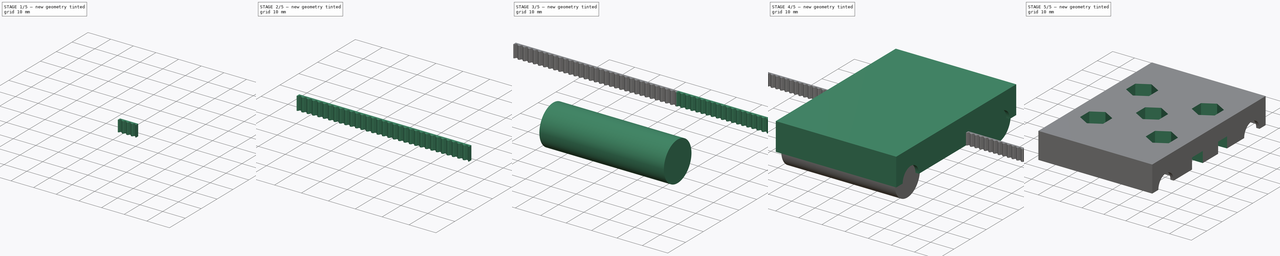
[diagram: build sequence overview — one tinted view per stage of 5, left to right]
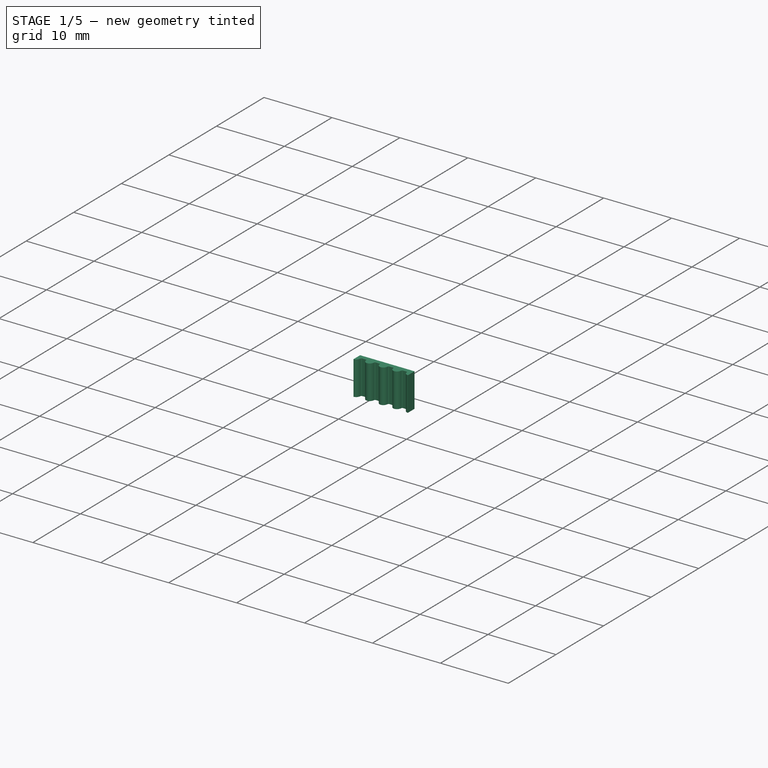
[diagram: stage 1 of 5 — iso view after this stage's code; geometry added in this stage tinted green]
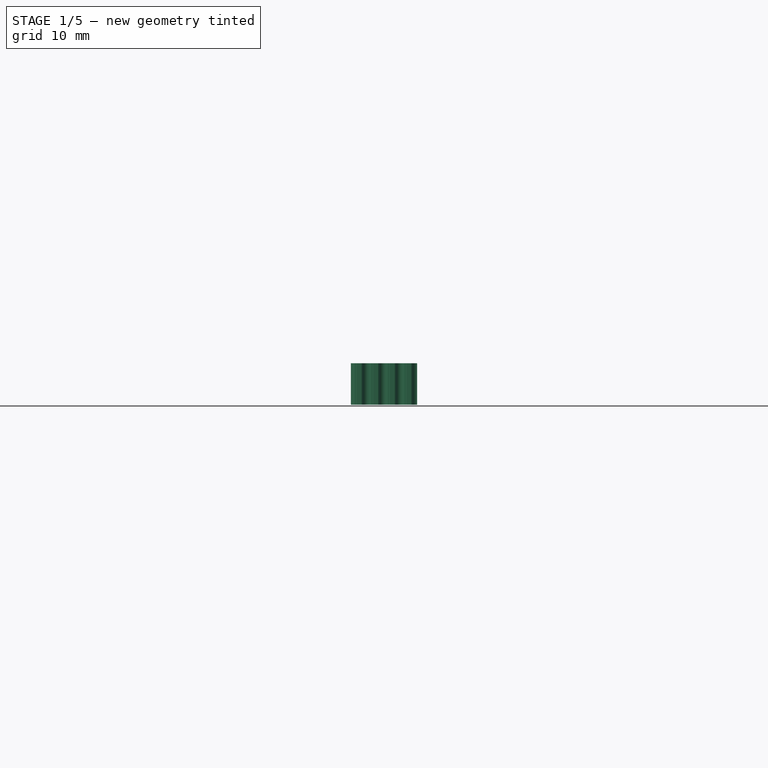
[diagram: stage 1 of 5 — front view after this stage's code; geometry added in this stage tinted green]
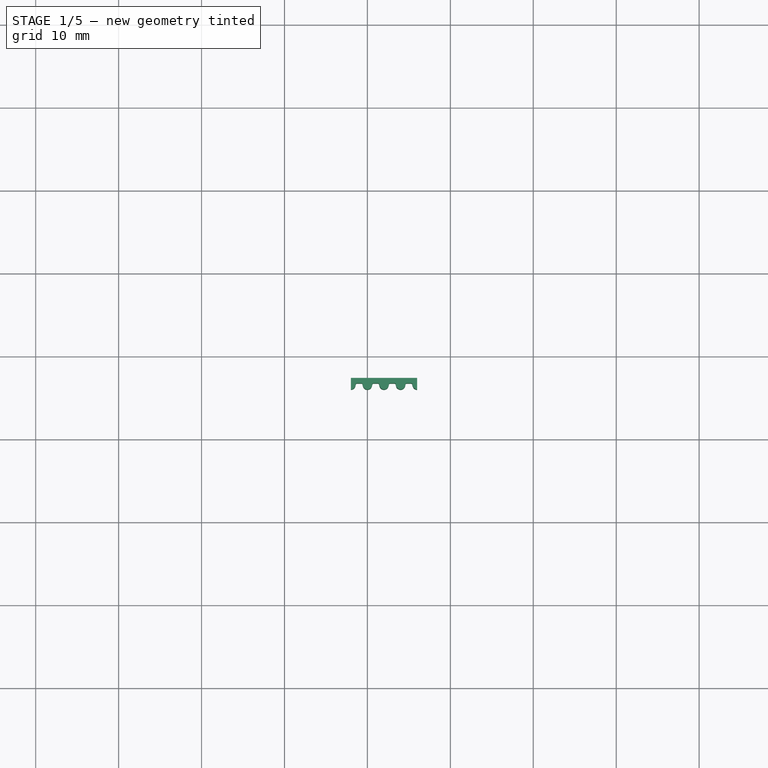
[diagram: stage 1 of 5 — top view after this stage's code; geometry added in this stage tinted green]
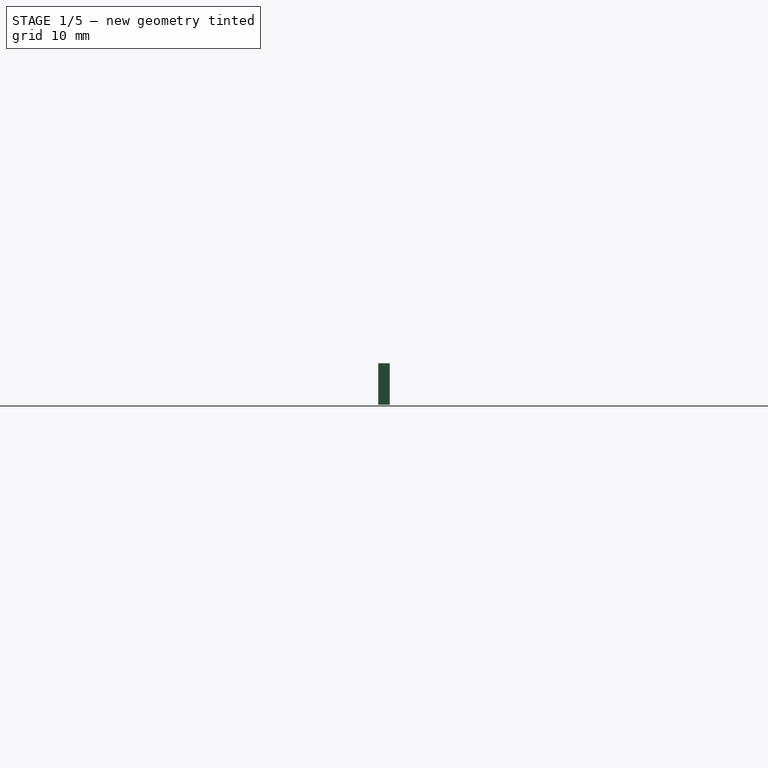
[diagram: stage 1 of 5 — right view after this stage's code; geometry added in this stage tinted green]
FCSTD DOCUMENT  (FreeCAD 0.18R16131 (Git))
Label: carriage_8mm_rods
License: All rights reserved
LicenseURL: http://en.wikipedia.org/wiki/All_rights_reserved
objects: Part::MultiFuse×9, Sketcher::SketchObject×6, Part::FeaturePython×5, Part::Mirroring×4, PartDesign::Pocket×4, Part::Cut×3, PartDesign::Pad×2, Part::Cylinder×2, Spreadsheet::Sheet×1
note: 41 computed .brp shape members not serialized (recipe doc carries the construction recipe); baked Part::Feature solids carry a one-line shape summary decoded from their .brp

FEATURE [Sketcher::SketchObject] Sketch003  label="BeltHolderSketch"
  MapMode = 5
  sketch-geometry (24):
    g0: LineSegment [constr] StartX=0 StartY=6 StartZ=0 EndX=2 EndY=6 EndZ=0
    g1: LineSegment [constr] StartX=2 StartY=6 StartZ=0 EndX=2 EndY=6.75 EndZ=0
    g2: LineSegment [constr] StartX=2 StartY=6.75 StartZ=0 EndX=0 EndY=6.75 EndZ=0
    g3: LineSegment [constr] StartX=0 StartY=6.75 StartZ=0 EndX=0 EndY=6 EndZ=0
    g4: LineSegment [constr] StartX=2 StartY=6.75 StartZ=0 EndX=2.4 EndY=6.75 EndZ=0
    g5: LineSegment [constr] StartX=0 StartY=6.75 StartZ=0 EndX=-0.4 EndY=6.75 EndZ=0
    g6: GeomPoint [constr] X=0 Y=6 Z=0
    g7: ArcOfCircle CenterX=0 CenterY=6.56117 CenterZ=0 NormalX=0 NormalY=0 NormalZ=1 AngleXU=0 Radius=0.561168 StartAngle=4.71239 EndAngle=5.67385
    g8: ArcOfCircle CenterX=-0.4 CenterY=6.75 CenterZ=0 NormalX=0 NormalY=0 NormalZ=1 AngleXU=0 Radius=1 StartAngle=5.748 EndAngle=6.13262
    g9: ArcOfCircle CenterX=0.738686 CenterY=6.6 CenterZ=0 NormalX=0 NormalY=0 NormalZ=1 AngleXU=0 Radius=0.15 StartAngle=1.5708 EndAngle=3.14159
    g10: ArcOfCircle CenterX=2 CenterY=6.56117 CenterZ=0 NormalX=0 NormalY=0 NormalZ=1 AngleXU=0 Radius=0.561168 StartAngle=3.75093 EndAngle=4.71239
    g11: LineSegment [constr] StartX=0.460174 StartY=6.24 StartZ=0 EndX=1.53983 EndY=6.24 EndZ=0
    g12: ArcOfCircle CenterX=2.4 CenterY=6.75 CenterZ=0 NormalX=0 NormalY=0 NormalZ=1 AngleXU=0 Radius=1 StartAngle=3.29216 EndAngle=3.67678
    g13: LineSegment [constr] StartX=0.460174 StartY=6.24 StartZ=0 EndX=0 EndY=6.24 EndZ=0
    g14: LineSegment [constr] StartX=1.53983 StartY=6.24 StartZ=0 EndX=2 EndY=6.24 EndZ=0
    g15: LineSegment [constr] StartX=0.588686 StartY=6.6 StartZ=0 EndX=1.41131 EndY=6.6 EndZ=0
    g16: GeomPoint [constr] X=1.26131 Y=6.6 Z=0
    g17: ArcOfCircle CenterX=1.26131 CenterY=6.6 CenterZ=0 NormalX=0 NormalY=0 NormalZ=1 AngleXU=0 Radius=0.15 StartAngle=0 EndAngle=1.57082
    g18: LineSegment StartX=0.738686 StartY=6.75 StartZ=0 EndX=1.26131 EndY=6.75 EndZ=0
    g19: LineSegment [constr] StartX=0.738686 StartY=6.6 StartZ=0 EndX=0.738686 EndY=6.75 EndZ=0
    g20: GeomPoint [constr] X=0 Y=6 Z=0
    g21: LineSegment StartX=0 StartY=6 StartZ=0 EndX=0 EndY=7.38 EndZ=0
    g22: LineSegment StartX=2 StartY=6 StartZ=0 EndX=2 EndY=7.38 EndZ=0
    g23: LineSegment StartX=0 StartY=7.38 StartZ=0 EndX=2 EndY=7.38 EndZ=0
  constraints (65):
    c: Coincident(g3,g0)
    c: Horizontal(g11)
    c: Coincident(g11,g7)
    c: Coincident(g11,g10)
    c: DistanceX(g2,g1) = 2
    c: Equal(g7,g10)
    c: Radius(g8) = 1
    c: Equal(g12,g8)
    c: Coincident(g8,g9)
    c: Coincident(g7,g8)
    c: Vertical(g3)
    c: Horizontal(g0)
    c: Horizontal(g2)
    c: Vertical(g1)
    c: Horizontal(g4)
    c: Horizontal(g5)
    c: PointOnObject(g9,g2)
    c: Radius(g9) = 0.15
    c: Coincident(g4,g12)
    c: DistanceX(g1,g4) = 0.4
    c: Coincident(g0,g1)
    c: Coincident(g0,g10)
    c: Coincident(g10,g12)
    c: Coincident(g5,g8)
    c: Coincident(g2,g3)
    c: Coincident(g2,g5)
    c: Coincident(g1,g2)
    c: Coincident(g1,g4)
    c: DistanceY(g1,g1) = 0.75
    c: Coincident(g0,g6)
    c: Coincident(g0,g7)
    c: Coincident(g13,g7)
    c: Horizontal(g13)
    c: PointOnObject(g13,g3)
    c: Coincident(g14,g10)
    c: Horizontal(g14)
    c: PointOnObject(g14,g1)
    c: Equal(g13,g14)
    c: Coincident(g15,g8)
    c: Coincident(g15,g12)
    c: Horizontal(g15)
    c: PointOnObject(g7,g3)
    c: DistanceY(g12,g1) = 0.15
    c: PointOnObject(g16,g15)
    c: DistanceX(g16,g12) = 0.15
    c: Coincident(g17,g16)
    c: Coincident(g18,g9)
    c: Vertical(g19)
    c: Coincident(g19,g9)
    c: Coincident(g19,g9)
    c: PointOnObject(g17,g2)
    c: Coincident(g18,g17)
    c: DistanceY(g0,g14) = 0.24
    c: Coincident(g17,g12)
    c: PointOnObject(g20,g-2)
    c: DistanceY(g-1,g20) = 6
    c: Coincident(g20,g0)
    c: Coincident(g21,g0)
    c: Vertical(g21)
    c: Coincident(g22,g0)
    c: Vertical(g22)
    c: Equal(g21,g22)
    c: DistanceY(g0,g21) = 1.38
    c: Coincident(g23,g21)
    c: Coincident(g23,g22)
FEATURE [PartDesign::Pad] Pad001  label="BeltHolderPad"
  Length = 5
  Length2 = 100
  Profile = -> Sketch003
  Type = 0
FEATURE [Part::FeaturePython] Clone  label="Clone of BeltHolderPad"  # Draft clone (typed FeaturePython)
  Objects = -> [Pad001]
  Placement = pos=(2,0,0) rot=(0,0,1;0rad)
  Scale = (1,1,1)
FEATURE [Part::MultiFuse] Fusion003  label="BeltHolderFusion1"
  Shapes = -> [Pad001,Clone]
FEATURE [Part::FeaturePython] Clone001  label="Clone of BeltHolderFusion1"  # Draft clone (typed FeaturePython)
  Objects = -> [Fusion003]
  Placement = pos=(4,0,0) rot=(0,0,1;0rad)
  Scale = (1,1,1)
FEATURE [Part::MultiFuse] Fusion004  label="BeltHolderFusion2"
  Shapes = -> [Fusion003,Clone001]
FEATURE [Part::FeaturePython] Clone002  label="Clone of BeltHolderFusion2"  # Draft clone (typed FeaturePython)
  Objects = -> [Fusion004]
  Placement = pos=(8,0,0) rot=(0,0,1;0rad)
  Scale = (1,1,1)
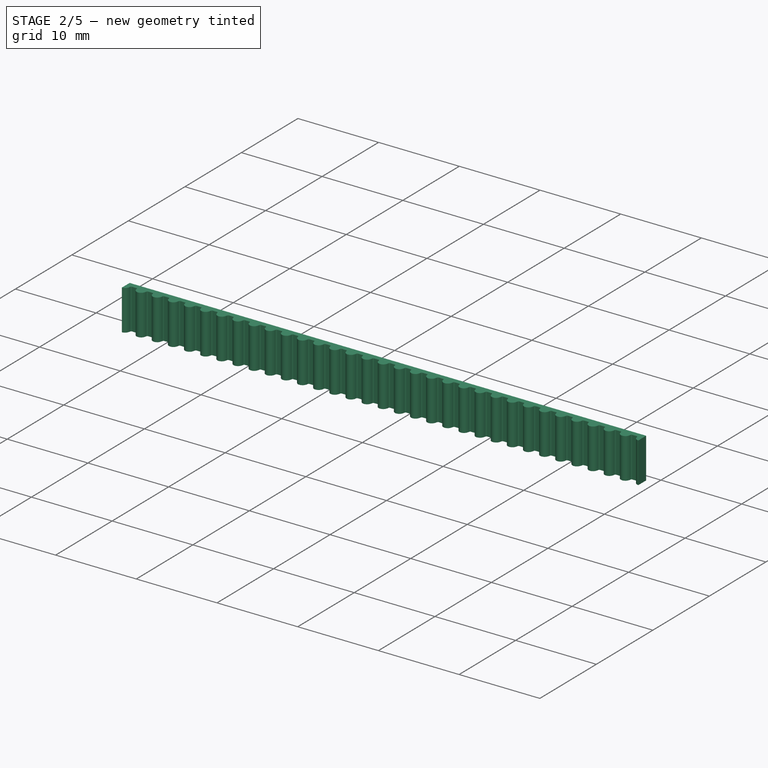
[diagram: stage 2 of 5 — iso view after this stage's code; geometry added in this stage tinted green]
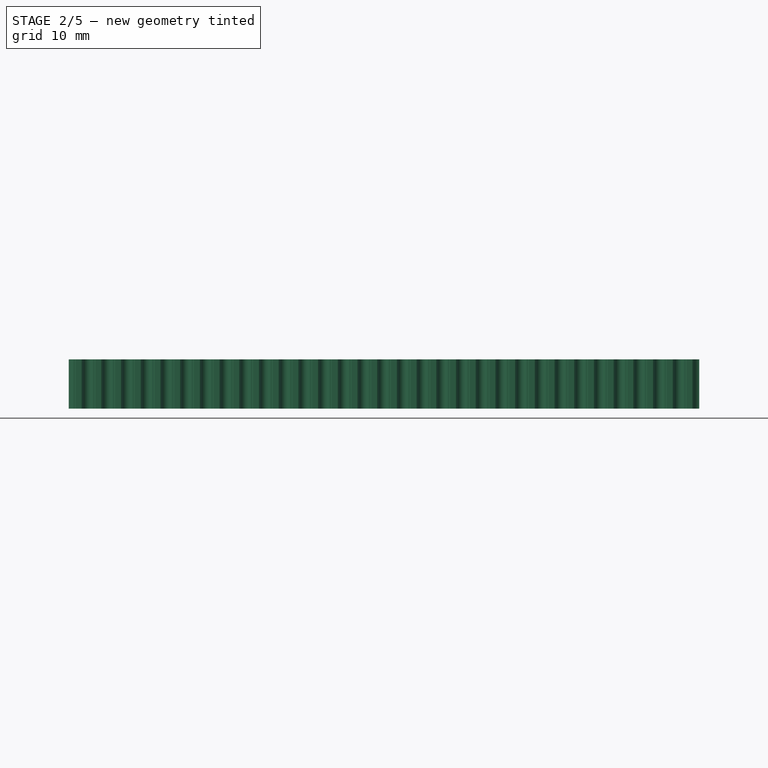
[diagram: stage 2 of 5 — front view after this stage's code; geometry added in this stage tinted green]
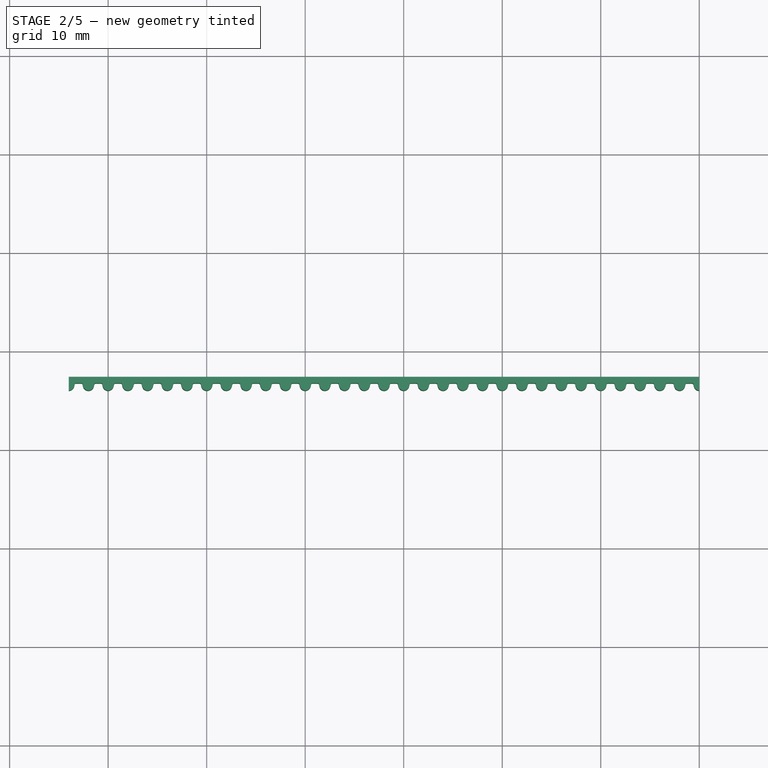
[diagram: stage 2 of 5 — top view after this stage's code; geometry added in this stage tinted green]
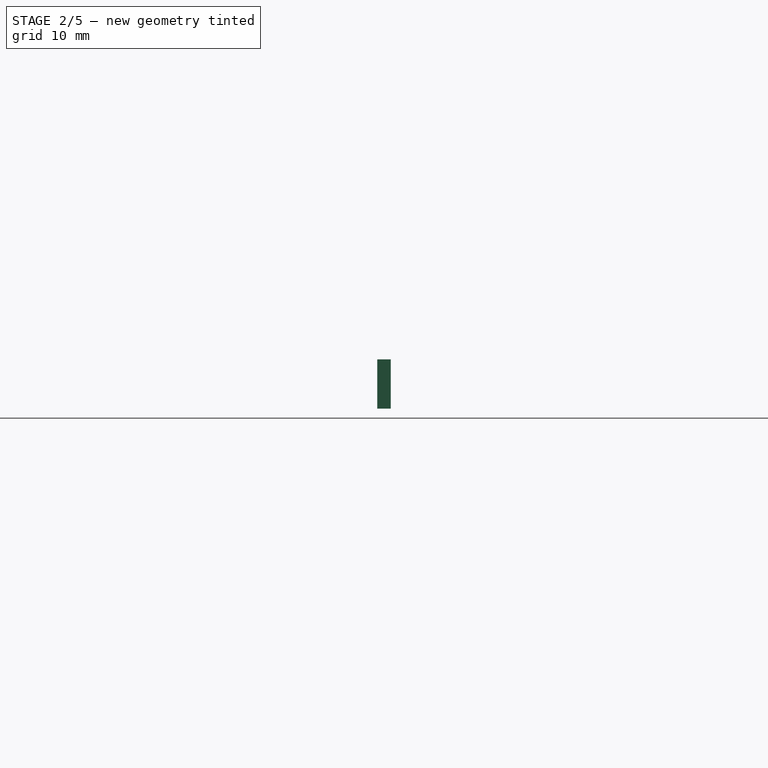
[diagram: stage 2 of 5 — right view after this stage's code; geometry added in this stage tinted green]
FEATURE [Part::MultiFuse] Fusion005  label="BeltHolderFusion3"
  Shapes = -> [Fusion004,Clone002]
FEATURE [Part::FeaturePython] Clone003  label="Clone of BeltHolderFusion3"  # Draft clone (typed FeaturePython)
  Objects = -> [Fusion005]
  Placement = pos=(16,0,0) rot=(0,0,1;0rad)
  Scale = (1,1,1)
FEATURE [Part::MultiFuse] Fusion006  label="BeltHolderFusion4"
  Shapes = -> [Fusion005,Clone003]
FEATURE [Part::FeaturePython] Clone004  label="Clone of BeltHolderFusion4"  # Draft clone (typed FeaturePython)
  Objects = -> [Fusion006]
  Placement = pos=(32,0,0) rot=(0,0,1;0rad)
  Scale = (1,1,1)
FEATURE [Part::MultiFuse] Fusion007  label="BeltHolderFusion5"
  Shapes = -> [Fusion006,Clone004]
FEATURE [Part::Mirroring] Part__Mirroring003  label="BeltHolderFusion5 (Mirror #4)"
  Base = (0,0,0)
  Normal = (1,0,0)
  Source = -> Fusion007
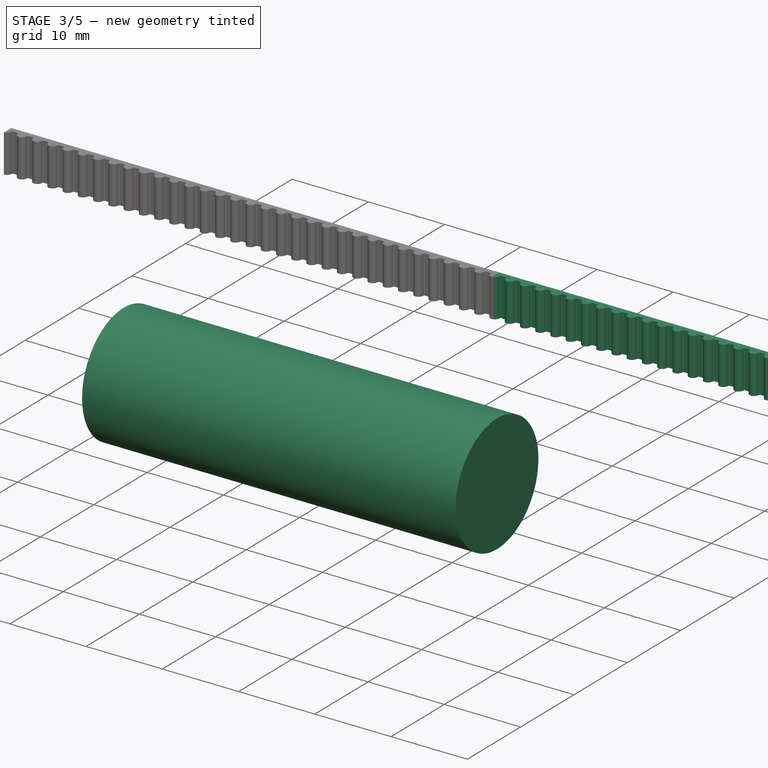
[diagram: stage 3 of 5 — iso view after this stage's code; geometry added in this stage tinted green]
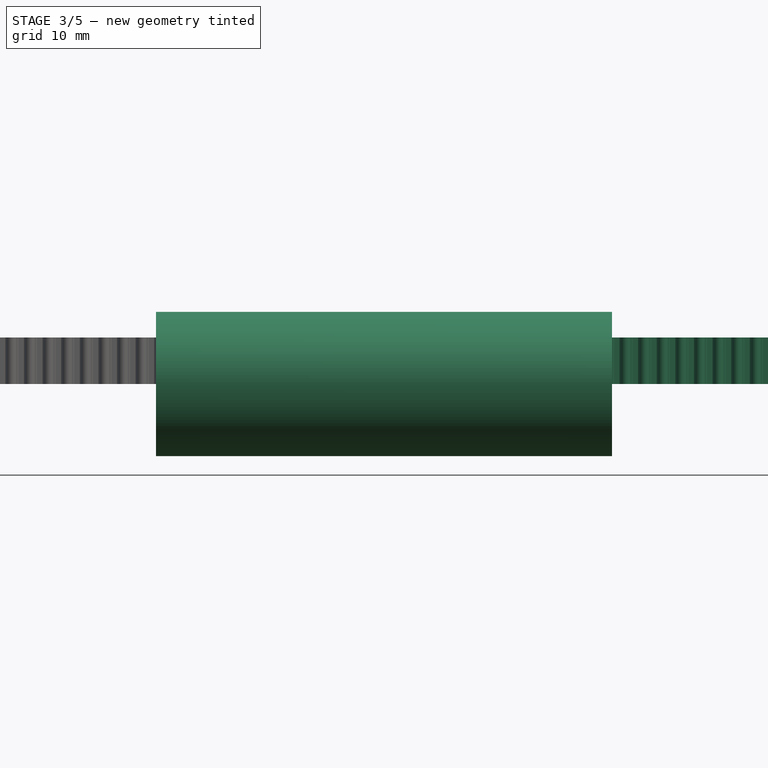
[diagram: stage 3 of 5 — front view after this stage's code; geometry added in this stage tinted green]
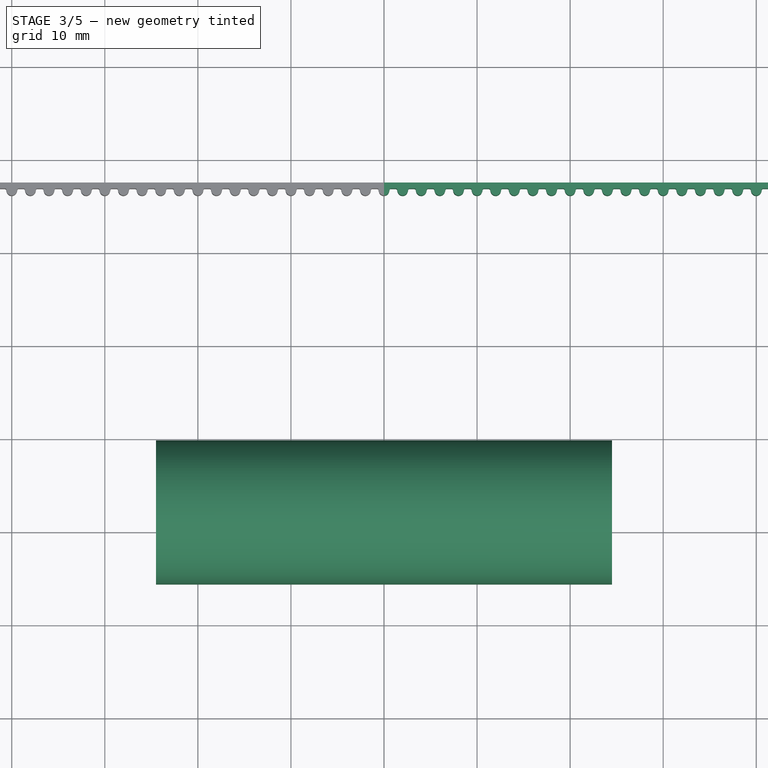
[diagram: stage 3 of 5 — top view after this stage's code; geometry added in this stage tinted green]
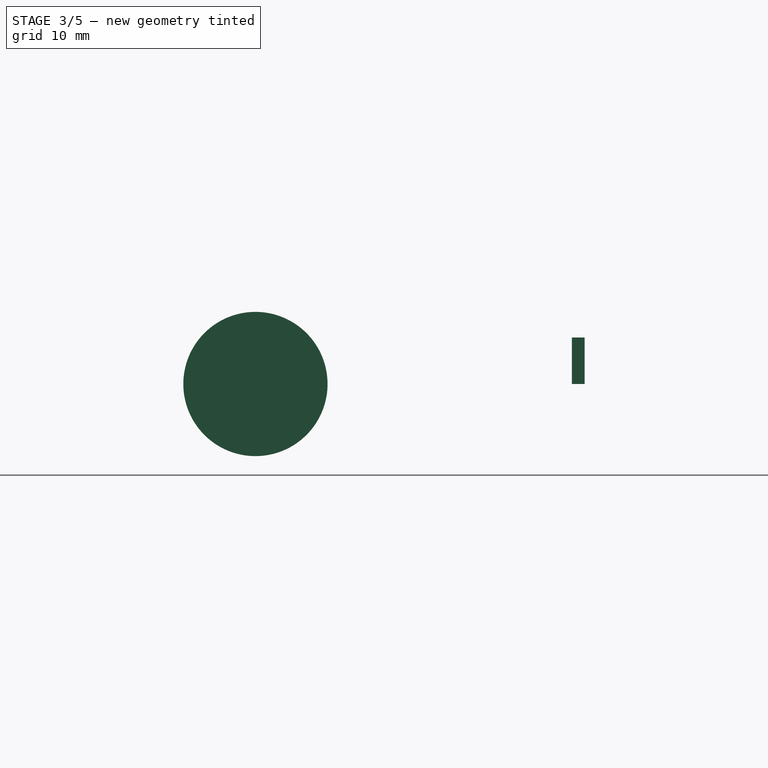
[diagram: stage 3 of 5 — right view after this stage's code; geometry added in this stage tinted green]
FEATURE [Part::Cylinder] Cylinder001  label="BearingCylinder"
  Angle = 360
  AttacherType = Attacher::AttachEngine3D
  Height = 24.5
  Placement = pos=(0,28,0) rot=(0,-1,0;1.5708rad)
  Radius = 7.75
FEATURE [Part::Mirroring] Part__Mirroring001  label="BearingCylinder (Mirror #2)"
  Base = (0,0,0)
  Normal = (1,0,0)
  Source = -> Cylinder001
FEATURE [Part::MultiFuse] Fusion001  label="BearingFusion1"
  Shapes = -> [Part__Mirroring001,Cylinder001]
FEATURE [Part::Mirroring] Part__Mirroring002  label="BearingFusion1 (Mirror #3)"
  Base = (0,0,0)
  Normal = (0,1,0)
  Source = -> Fusion001
FEATURE [Part::MultiFuse] Fusion008  label="BeltHolderFusions"
  Shapes = -> [Part__Mirroring003,Fusion007]
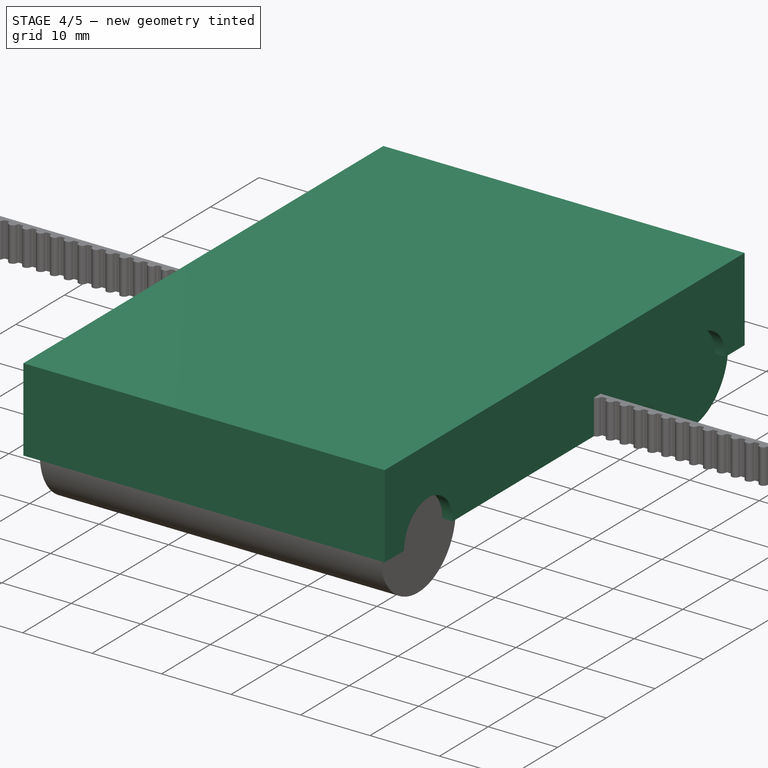
[diagram: stage 4 of 5 — iso view after this stage's code; geometry added in this stage tinted green]
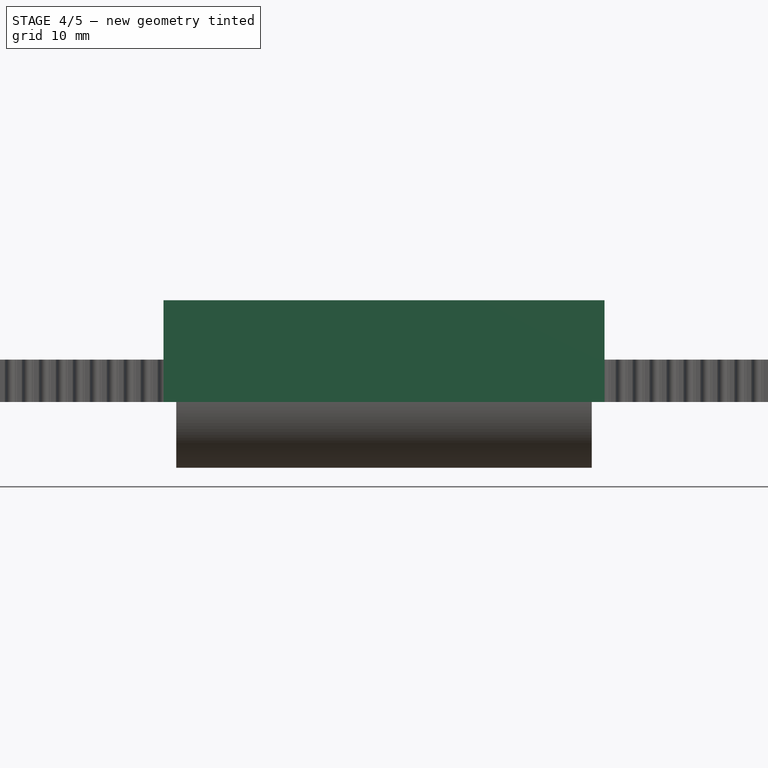
[diagram: stage 4 of 5 — front view after this stage's code; geometry added in this stage tinted green]
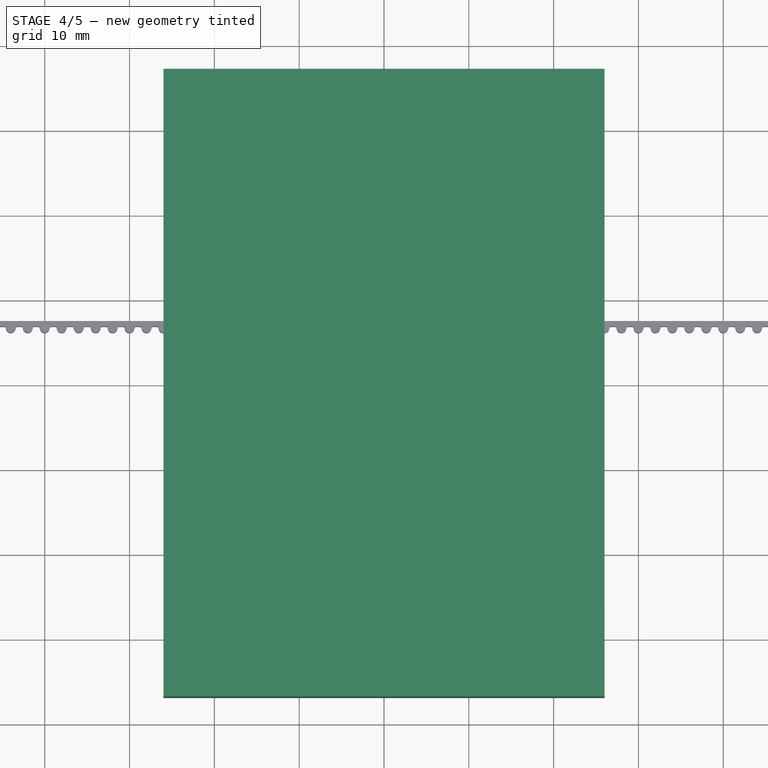
[diagram: stage 4 of 5 — top view after this stage's code; geometry added in this stage tinted green]
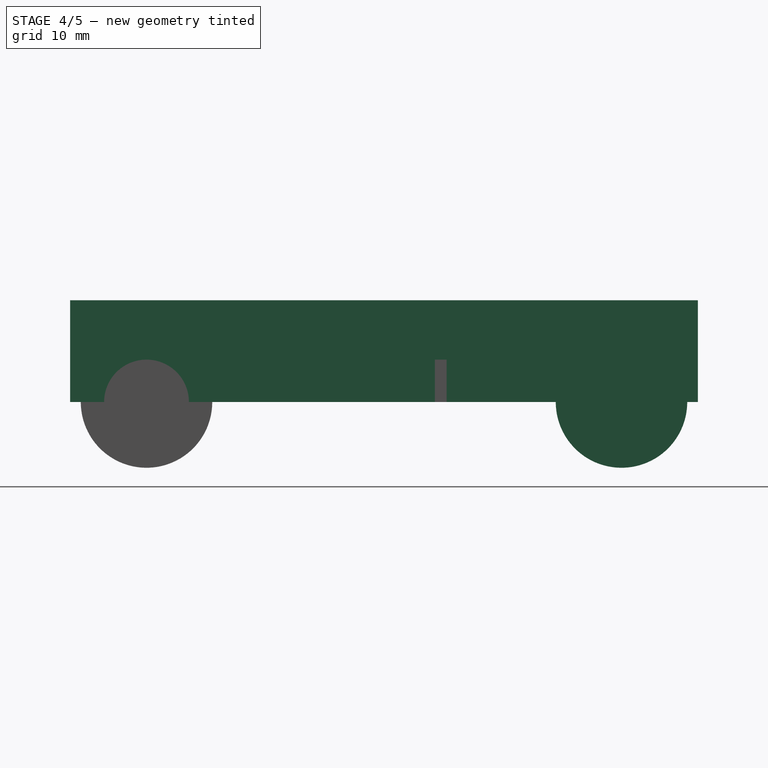
[diagram: stage 4 of 5 — right view after this stage's code; geometry added in this stage tinted green]
FEATURE [Sketcher::SketchObject] Sketch  label="CarriageBlockSketch"
  MapMode = 5
  sketch-geometry (6):
    g0: LineSegment StartX=-26 StartY=37 StartZ=0 EndX=26 EndY=37 EndZ=0
    g1: LineSegment StartX=26 StartY=37 StartZ=0 EndX=26 EndY=-37 EndZ=0
    g2: LineSegment StartX=26 StartY=-37 StartZ=0 EndX=-26 EndY=-37 EndZ=0
    g3: LineSegment StartX=-26 StartY=-37 StartZ=0 EndX=-26 EndY=37 EndZ=0
    g4: GeomPoint [constr] X=-26 Y=0 Z=0
    g5: GeomPoint [constr] X=0 Y=37 Z=0
  constraints (10):
    c: Coincident(g0,g1)
    c: Coincident(g1,g2)
    c: Coincident(g2,g3)
    c: Coincident(g3,g0)
    c: Horizontal(g0)
    c: Horizontal(g2)
    c: Vertical(g1)
    c: Vertical(g3)
    c: Symmetric(g0,g0,g5)
    c: Symmetric(g0,g2,g4)
FEATURE [PartDesign::Pad] Pad  label="CarriageBlockPad"
  Length = 12
  Length2 = 100
  Profile = -> Sketch
  Type = 0
FEATURE [Part::Cylinder] Cylinder  label="RodCylinder"
  Angle = 360
  AttacherType = Attacher::AttachEngine3D
  Height = 90
  Placement = pos=(45,28,0) rot=(0,-1,0;1.5708rad)
  Radius = 5
FEATURE [Part::Mirroring] Part__Mirroring  label="RodCylinder (Mirror #1)"
  Base = (0,0,0)
  Normal = (0,1,0)
  Source = -> Cylinder
FEATURE [Part::MultiFuse] Fusion  label="RodCylinderFusion"
  Shapes = -> [Part__Mirroring,Cylinder]
FEATURE [Part::Cut] Cut  label="RodCut"
  Base = -> Pad
  Tool = -> Fusion
FEATURE [Part::MultiFuse] Fusion002  label="BearingMirrorFusions"
  Shapes = -> [Part__Mirroring002,Fusion001]
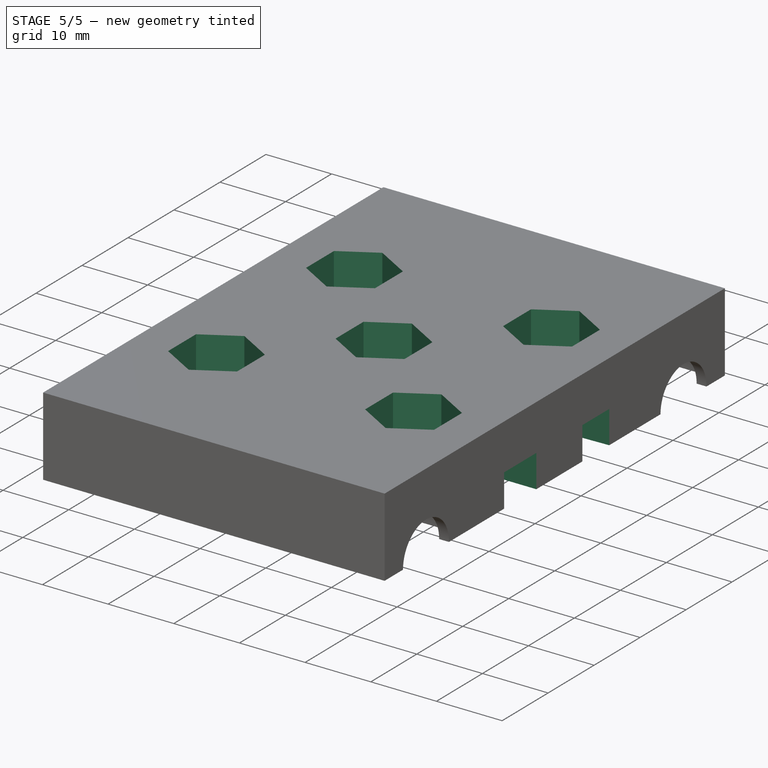
[diagram: stage 5 of 5 — iso view after this stage's code; geometry added in this stage tinted green]
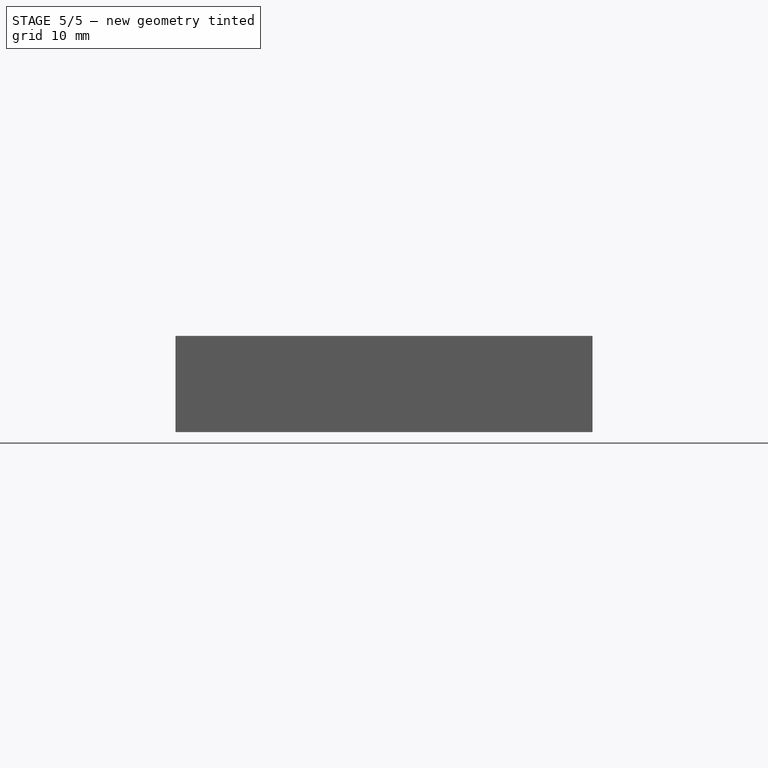
[diagram: stage 5 of 5 — front view after this stage's code; geometry added in this stage tinted green]
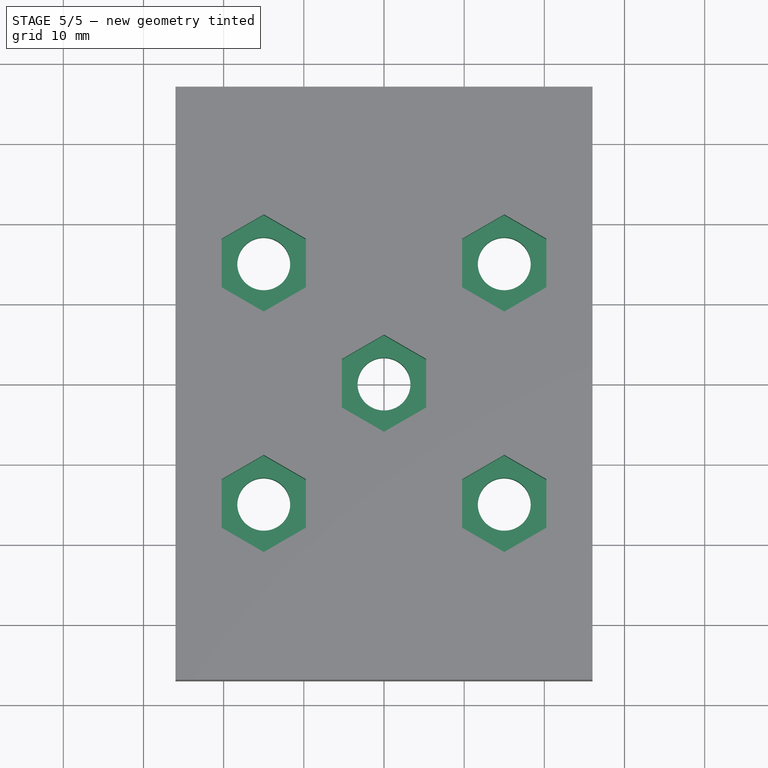
[diagram: stage 5 of 5 — top view after this stage's code; geometry added in this stage tinted green]
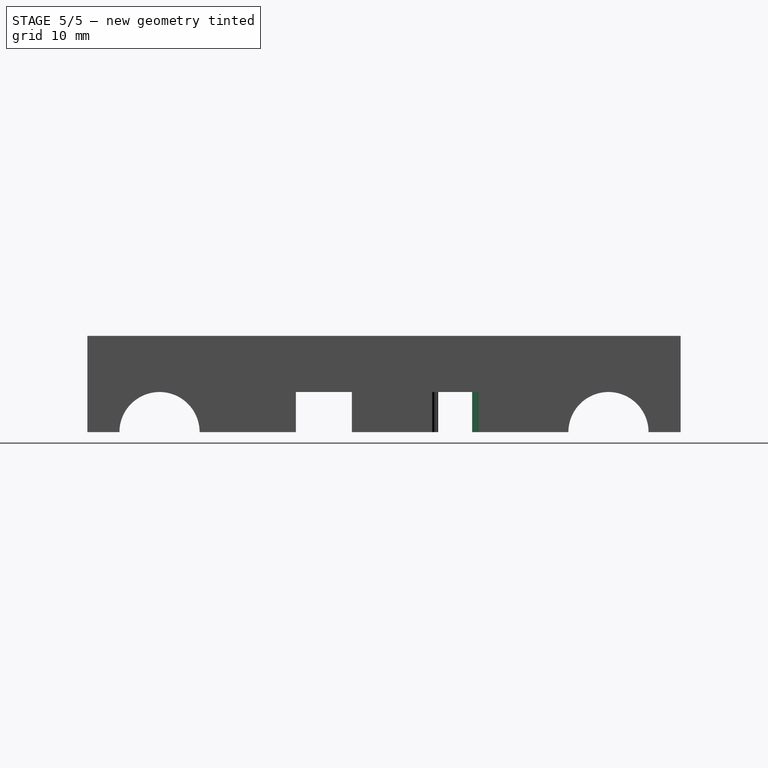
[diagram: stage 5 of 5 — right view after this stage's code; geometry added in this stage tinted green]
FEATURE [Part::Cut] Cut001  label="BearingMirrorFusionsCut"
  Base = -> Cut
  Tool = -> Fusion002
FEATURE [Sketcher::SketchObject] Sketch001  label="NutCatchersFrontSketch"
  MapMode = 5
  Placement = pos=(0,0,12) rot=(0,0,1;0rad)
  Support = -> [Cut001]
  sketch-geometry (35):
    g0: LineSegment StartX=-9.75 StartY=11.9689 StartZ=0 EndX=-9.75 EndY=18.0311 EndZ=0
    g1: LineSegment StartX=-9.75 StartY=18.0311 StartZ=0 EndX=-15 EndY=21.0622 EndZ=0
    g2: LineSegment StartX=-15 StartY=21.0622 StartZ=0 EndX=-20.25 EndY=18.0311 EndZ=0
    g3: LineSegment StartX=-20.25 StartY=18.0311 StartZ=0 EndX=-20.25 EndY=11.9689 EndZ=0
    g4: LineSegment StartX=-20.25 StartY=11.9689 StartZ=0 EndX=-15 EndY=8.93782 EndZ=0
    g5: LineSegment StartX=-15 StartY=8.93782 StartZ=0 EndX=-9.75 EndY=11.9689 EndZ=0
    g6: Circle [constr] CenterX=-15 CenterY=15 CenterZ=0 NormalX=0 NormalY=0 NormalZ=1 AngleXU=0 Radius=6.06218
    g7: LineSegment StartX=15 StartY=8.93782 StartZ=0 EndX=20.25 EndY=11.9689 EndZ=0
    g8: LineSegment StartX=20.25 StartY=11.9689 StartZ=0 EndX=20.25 EndY=18.0311 EndZ=0
    g9: LineSegment StartX=20.25 StartY=18.0311 StartZ=0 EndX=15 EndY=21.0622 EndZ=0
    g10: LineSegment StartX=15 StartY=21.0622 StartZ=0 EndX=9.75 EndY=18.0311 EndZ=0
    g11: LineSegment StartX=9.75 StartY=18.0311 StartZ=0 EndX=9.75 EndY=11.9689 EndZ=0
    g12: LineSegment StartX=9.75 StartY=11.9689 StartZ=0 EndX=15 EndY=8.93782 EndZ=0
    g13: Circle [constr] CenterX=15 CenterY=15 CenterZ=0 NormalX=0 NormalY=0 NormalZ=1 AngleXU=0 Radius=6.06218
    g14: LineSegment StartX=-15 StartY=-21.0622 StartZ=0 EndX=-9.75 EndY=-18.0311 EndZ=0
    g15: LineSegment StartX=-9.75 StartY=-18.0311 StartZ=0 EndX=-9.75 EndY=-11.9689 EndZ=0
    g16: LineSegment StartX=-9.75 StartY=-11.9689 StartZ=0 EndX=-15 EndY=-8.93782 EndZ=0
    g17: LineSegment StartX=-15 StartY=-8.93782 StartZ=0 EndX=-20.25 EndY=-11.9689 EndZ=0
    g18: LineSegment StartX=-20.25 StartY=-11.9689 StartZ=0 EndX=-20.25 EndY=-18.0311 EndZ=0
    g19: LineSegment StartX=-20.25 StartY=-18.0311 StartZ=0 EndX=-15 EndY=-21.0622 EndZ=0
    g20: Circle [constr] CenterX=-15 CenterY=-15 CenterZ=0 NormalX=0 NormalY=0 NormalZ=1 AngleXU=0 Radius=6.06218
    g21: LineSegment StartX=15 StartY=-21.0622 StartZ=0 EndX=20.25 EndY=-18.0311 EndZ=0
    g22: LineSegment StartX=20.25 StartY=-18.0311 StartZ=0 EndX=20.25 EndY=-11.9689 EndZ=0
    g23: LineSegment StartX=20.25 StartY=-11.9689 StartZ=0 EndX=15 EndY=-8.93782 EndZ=0
    g24: LineSegment StartX=15 StartY=-8.93782 StartZ=0 EndX=9.75 EndY=-11.9689 EndZ=0
    g25: LineSegment StartX=9.75 StartY=-11.9689 StartZ=0 EndX=9.75 EndY=-18.0311 EndZ=0
    g26: LineSegment StartX=9.75 StartY=-18.0311 StartZ=0 EndX=15 EndY=-21.0622 EndZ=0
    g27: Circle [constr] CenterX=15 CenterY=-15 CenterZ=0 NormalX=0 NormalY=0 NormalZ=1 AngleXU=0 Radius=6.06218
    g28: LineSegment StartX=5.25 StartY=3.03109 StartZ=0 EndX=1.8e-15 EndY=6.06218 EndZ=0
    g29: LineSegment StartX=2.1e-15 StartY=6.06218 StartZ=0 EndX=-5.25 EndY=3.03109 EndZ=0
    g30: LineSegment StartX=-5.25 StartY=3.03109 StartZ=0 EndX=-5.25 EndY=-3.03109 EndZ=0
    g31: LineSegment StartX=-5.25 StartY=-3.03109 StartZ=0 EndX=3.6e-15 EndY=-6.06218 EndZ=0
    g32: LineSegment StartX=3.3e-15 StartY=-6.06218 StartZ=0 EndX=5.25 EndY=-3.03109 EndZ=0
    g33: LineSegment StartX=5.25 StartY=-3.03109 StartZ=0 EndX=5.25 EndY=3.03109 EndZ=0
    g34: Circle [constr] CenterX=0 CenterY=0 CenterZ=0 NormalX=0 NormalY=0 NormalZ=1 AngleXU=0 Radius=6.06218
  constraints (81):
    c: Coincident(g0,g1)
    c: Coincident(g1,g2)
    c: Coincident(g2,g3)
    c: Coincident(g3,g4)
    c: Coincident(g4,g5)
    c: Coincident(g5,g0)
    c: Equal(g0, g1-g5) x5
    c: PointOnObject(g0,g6)
    c: PointOnObject(g1,g6)
    c: PointOnObject(g2,g6)
    c: PointOnObject(g3,g6)
    c: PointOnObject(g4,g6)
    c: PointOnObject(g5,g6)
    c: Vertical(g3)
    c: DistanceX(g6,g-1) = 15
    c: DistanceY(g-1,g6) = 15
    c: DistanceX(g2,g0) = 10.5
    c: Coincident(g7,g8)
    c: Coincident(g8,g9)
    c: Coincident(g9,g10)
    c: Coincident(g10,g11)
    c: Coincident(g11,g12)
    c: Coincident(g12,g7)
    c: Equal(g7, g8-g12) x5
    c: PointOnObject(g7,g13)
    c: PointOnObject(g8,g13)
    c: PointOnObject(g9,g13)
    c: PointOnObject(g10,g13)
    c: PointOnObject(g11,g13)
    c: PointOnObject(g12,g13)
    c: Coincident(g14,g15)
    c: Coincident(g15,g16)
    c: Coincident(g16,g17)
    c: Coincident(g17,g18)
    c: Coincident(g18,g19)
    c: Coincident(g19,g14)
    c: Equal(g14, g15-g19) x5
    c: PointOnObject(g14,g20)
    c: PointOnObject(g15,g20)
    c: PointOnObject(g16,g20)
    c: PointOnObject(g17,g20)
    c: PointOnObject(g18,g20)
    c: PointOnObject(g19,g20)
    c: Coincident(g21,g22)
    c: Coincident(g22,g23)
    c: Coincident(g23,g24)
    c: Coincident(g24,g25)
    c: Coincident(g25,g26)
    c: Coincident(g26,g21)
    c: Equal(g21, g22-g26) x5
    c: PointOnObject(g21,g27)
    c: PointOnObject(g22,g27)
    c: PointOnObject(g23,g27)
    c: PointOnObject(g24,g27)
    c: PointOnObject(g25,g27)
    c: PointOnObject(g26,g27)
    c: Vertical(g8)
    c: Vertical(g15)
    c: Vertical(g25)
    c: DistanceX(g10,g8) = 10.5
    c: DistanceX(g18,g14) = 10.5
    c: DistanceX(g25,g21) = 10.5
    c: Symmetric(g6,g13,g-2)
    c: Symmetric(g20,g6,g-1)
    c: Symmetric(g20,g27,g-2)
    c: Coincident(g28,g29)
    c: Coincident(g29,g30)
    c: Coincident(g30,g31)
    c: Coincident(g31,g32)
    c: Coincident(g32,g33)
    c: Coincident(g33,g28)
    c: Equal(g28, g29-g33) x5
    c: PointOnObject(g28,g34)
    c: PointOnObject(g29,g34)
    c: PointOnObject(g30,g34)
    c: PointOnObject(g31,g34)
    c: PointOnObject(g32,g34)
    c: PointOnObject(g33,g34)
    c: Coincident(g34,g-1)
    c: Vertical(g33)
    c: DistanceX(g30,g32) = 10.5
FEATURE [PartDesign::Pocket] Pocket  label="NutCatchersFrontPocket"
  Length = 6
  Length2 = 100
  Profile = -> Sketch001
  Type = 0
FEATURE [Part::Cut] Cut002  label="BeltHolderCut"
  Base = -> Pocket
  Tool = -> Fusion008
FEATURE [Sketcher::SketchObject] Sketch004  label="BoltHolesSketch"
  MapMode = 5
  Placement = pos=(0,0,6) rot=(0,0,1;0rad)
  Support = -> [Cut002]
  sketch-geometry (11):
    g0: LineSegment [constr] StartX=-15 StartY=15 StartZ=0 EndX=15 EndY=15 EndZ=0
    g1: LineSegment [constr] StartX=15 StartY=15 StartZ=0 EndX=15 EndY=-15 EndZ=0
    g2: LineSegment [constr] StartX=15 StartY=-15 StartZ=0 EndX=-15 EndY=-15 EndZ=0
    g3: LineSegment [constr] StartX=-15 StartY=-15 StartZ=0 EndX=-15 EndY=15 EndZ=0
    g4: GeomPoint [constr] X=0 Y=15 Z=0
    g5: GeomPoint [constr] X=-15 Y=0 Z=0
    g6: Circle CenterX=-15 CenterY=15 CenterZ=0 NormalX=0 NormalY=0 NormalZ=1 AngleXU=0 Radius=3.3
    g7: Circle CenterX=0 CenterY=0 CenterZ=0 NormalX=0 NormalY=0 NormalZ=1 AngleXU=0 Radius=3.3
    g8: Circle CenterX=15 CenterY=15 CenterZ=0 NormalX=0 NormalY=0 NormalZ=1 AngleXU=0 Radius=3.3
    g9: Circle CenterX=15 CenterY=-15 CenterZ=0 NormalX=0 NormalY=0 NormalZ=1 AngleXU=0 Radius=3.3
    g10: Circle CenterX=-15 CenterY=-15 CenterZ=0 NormalX=0 NormalY=0 NormalZ=1 AngleXU=0 Radius=3.3
  constraints (24):
    c: Coincident(g0,g1)
    c: Coincident(g1,g2)
    c: Coincident(g2,g3)
    c: Coincident(g3,g0)
    c: Horizontal(g0)
    c: Horizontal(g2)
    c: Vertical(g1)
    c: Vertical(g3)
    c: Symmetric(g0,g0,g4)
    c: Symmetric(g0,g2,g5)
    c: DistanceY(g5,g-1) = 0
    c: DistanceX(g-1,g4) = 0
    c: DistanceX(g0,g4) = 15
    c: Equal(g0,g3)
    c: Equal(g10,g9)
    c: Equal(g9,g8)
    c: Equal(g8,g6)
    c: Equal(g6,g7)
    c: Coincident(g0,g6)
    c: Coincident(g0,g8)
    c: Coincident(g-1,g7)
    c: Coincident(g1,g9)
    c: Coincident(g2,g10)
    c: Radius(g7) = 3.3
FEATURE [PartDesign::Pocket] Pocket001  label="BoltHolesPocket"
  Length = 5
  Length2 = 100
  Profile = -> Sketch004
  Type = 1
FEATURE [Sketcher::SketchObject] Sketch005  label="BeltConicalSketch"
  MapMode = 5
  Placement = pos=(0,0,0) rot=(1,0,0;3.14159rad)
  Support = -> [Pocket001]
  sketch-geometry (5):
    g0: LineSegment StartX=-26 StartY=-7.38 StartZ=0 EndX=26 EndY=-7.38 EndZ=0
    g1: LineSegment StartX=26 StartY=-7.38 StartZ=0 EndX=26 EndY=-11.85 EndZ=0
    g2: LineSegment StartX=-26 StartY=-11.85 StartZ=0 EndX=-26 EndY=-7.38 EndZ=0
    g3: LineSegment StartX=-26 StartY=-11.85 StartZ=0 EndX=0 EndY=-11 EndZ=0
    g4: LineSegment StartX=0 StartY=-11 StartZ=0 EndX=26 EndY=-11.85 EndZ=0
  constraints (15):
    c: Coincident(g0,g1)
    c: Coincident(g2,g0)
    c: Horizontal(g0)
    c: Vertical(g1)
    c: Vertical(g2)
    c: PointOnObject(g3,g-2)
    c: Coincident(g2,g3)
    c: Coincident(g4,g1)
    c: Coincident(g3,g4)
    c: Equal(g3,g4)
    c: DistanceX(g0,g0) = 52
    c: DistanceY(g0,g-1) = 7.38
    c: DistanceY(g1,g3) = 0.85
    c: Equal(g2,g1)
    c: DistanceY(g3,g-1) = 11
FEATURE [PartDesign::Pocket] Pocket002  label="BeltConicalPocket"
  Length = 5
  Length2 = 100
  Profile = -> Sketch005
  Type = 0
FEATURE [Sketcher::SketchObject] Sketch006  label="BeltPassageSketch"
  MapMode = 5
  Placement = pos=(0,0,0) rot=(1,0,0;3.14159rad)
  Support = -> [Pocket002]
  sketch-geometry (5):
    g0: LineSegment StartX=-26 StartY=11 StartZ=0 EndX=26 EndY=11 EndZ=0
    g1: LineSegment StartX=26 StartY=11 StartZ=0 EndX=26 EndY=4 EndZ=0
    g2: LineSegment StartX=26 StartY=4 StartZ=0 EndX=-26 EndY=4 EndZ=0
    g3: LineSegment StartX=-26 StartY=4 StartZ=0 EndX=-26 EndY=11 EndZ=0
    g4: GeomPoint [constr] X=0 Y=11 Z=0
  constraints (11):
    c: Coincident(g0,g1)
    c: Coincident(g1,g2)
    c: Coincident(g2,g3)
    c: Coincident(g3,g0)
    c: Horizontal(g0)
    c: Horizontal(g2)
    c: Vertical(g1)
    c: Symmetric(g0,g0,g4)
    c: Equal(g0,g2)
    c: DistanceX(g0,g0) = 52
    c: DistanceY(g-1,g1) = 4
FEATURE [PartDesign::Pocket] Pocket003  label="BeltPassagePocket"
  Length = 5
  Length2 = 100
  Profile = -> Sketch006
  Type = 0
FEATURE [Spreadsheet::Sheet] _PARTINFO_  label="#PARTINFO#"
  cells = A1=IDENTNO; A2=DESCRIPTION; A3=SUPPLIER; A4=SUPP.IDENTNO; A5=SUPP.DESRCIPTION; A6=(FILENAME)
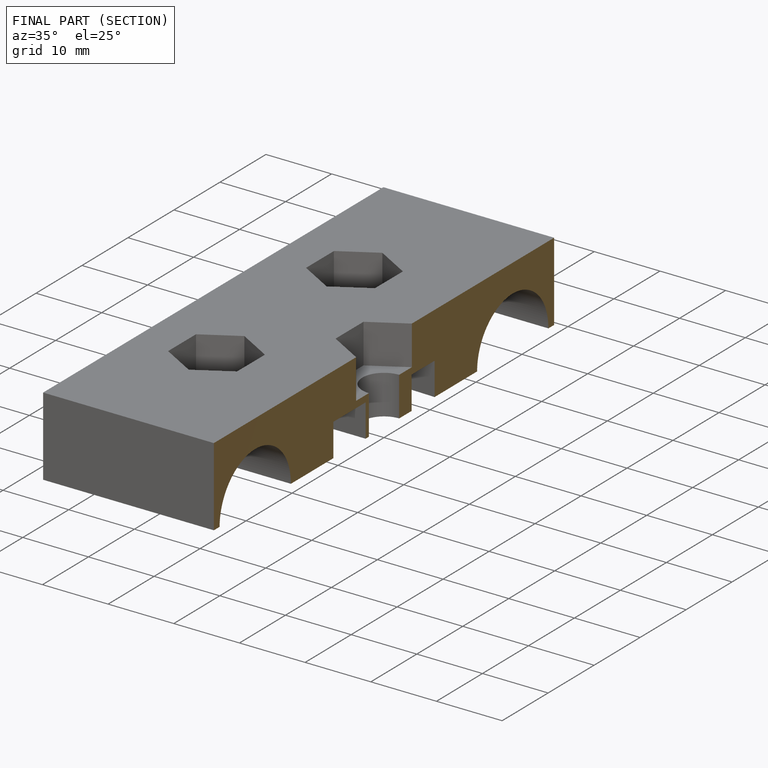
[diagram: finished part — half-section view (interior)]
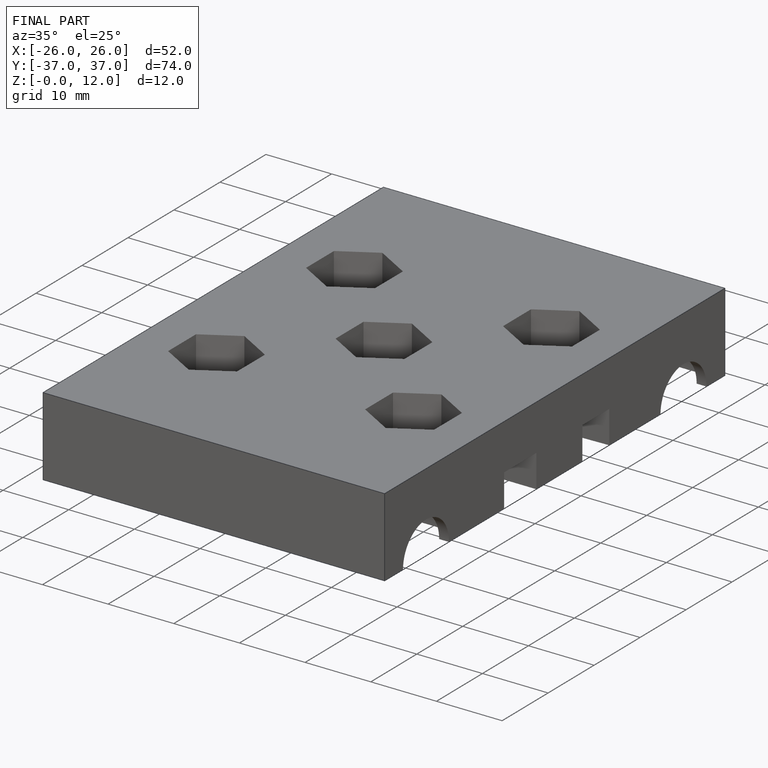
[diagram: finished part — iso view with bounding-box wireframe]
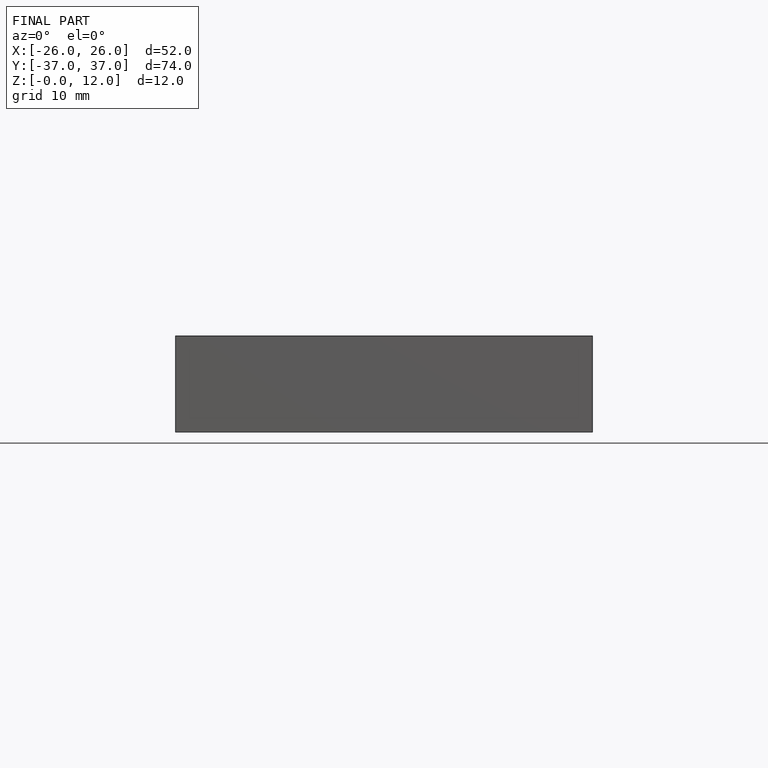
[diagram: finished part — front view with bounding-box wireframe]
